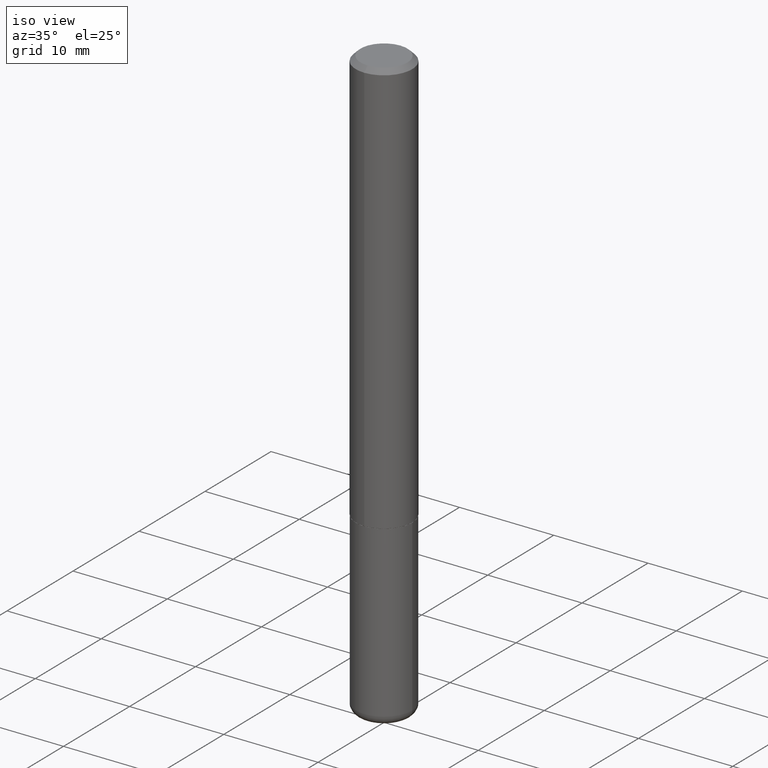
[diagram: clean part render]
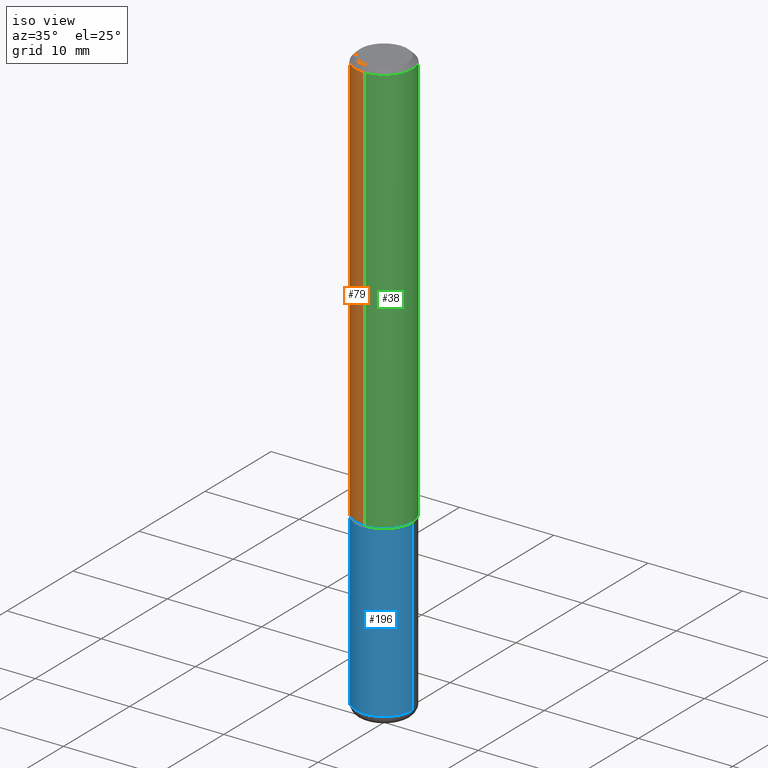
[diagram: same view with three faces highlighted in distinct colors, each labeled with its STEP entity id]
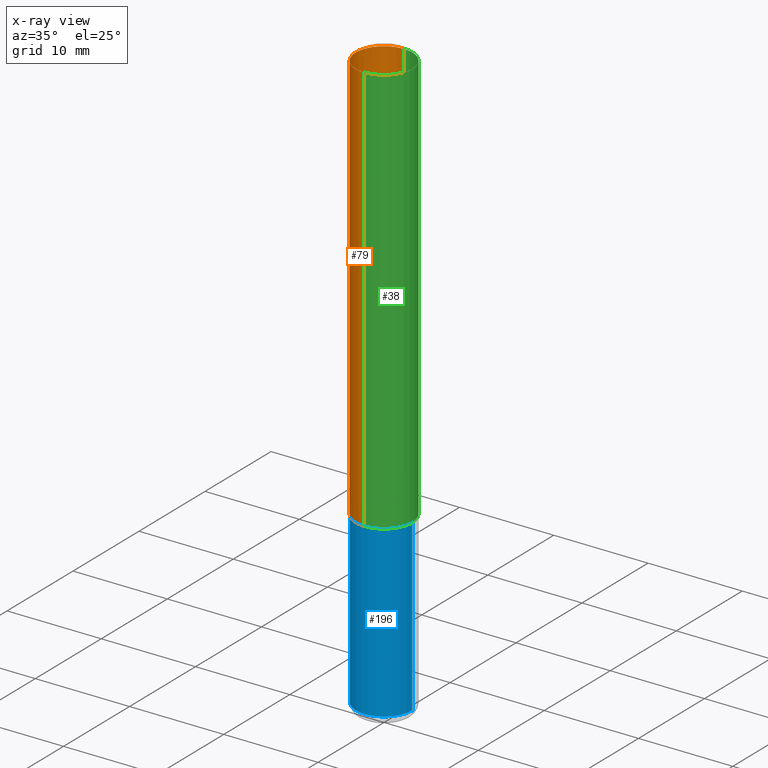
[diagram: x-ray of the same camera — body ghosted, the three highlighted faces saturated]
A machine part, iso view with three faces highlighted in distinct colors.
The next image is the same camera in x-ray (body ghosted, the three faces saturated) — at least one of them is partly hidden behind the body in this view.
Their STEP definitions:

[orange] entity #79 — the highlighted cylindrical surface (edge-blend (fillet) strip) has radius 2.9997 mm, axis along (-0, 0, 1).
#10 = ORIENTED_EDGE ( 'NONE', *, *, #206, .F. ) ;
#23 = CIRCLE ( 'NONE', #256, 0.1181000000000000105 ) ;
#25 = LINE ( 'NONE', #155, #282 ) ;
#41 = DIRECTION ( 'NONE',  ( -2.446293987951364918E-29, 3.490299631587476868E-15, 1.000000000000000000 ) ) ;
#55 = DIRECTION ( 'NONE',  ( -2.446293987951365198E-29, 3.490299631587476868E-15, 1.000000000000000000 ) ) ;
#65 = VECTOR ( 'NONE', #41, 39.37007874015748143 ) ;
#79 = ADVANCED_FACE ( 'NONE', ( #389 ), #102, .T. ) ;
#83 = CARTESIAN_POINT ( 'NONE',  ( 8.391509709327007782E-16, 0.1180999999999941402, -1.731300000000000727 ) ) ;
#102 = CYLINDRICAL_SURFACE ( 'NONE', #384, 0.1181000000000001077 ) ;
#117 = DIRECTION ( 'NONE',  ( -2.446293987951365198E-29, 3.490299631587476868E-15, 1.000000000000000000 ) ) ;
#134 = DIRECTION ( 'NONE',  ( -2.446293987951365198E-29, 3.490299631587476868E-15, 1.000000000000000000 ) ) ;
#153 = CARTESIAN_POINT ( 'NONE',  ( 4.892587975902738699E-31, -6.980599263174964533E-17, -0.02000000000000003511 ) ) ;
#154 = EDGE_LOOP ( 'NONE', ( #10, #188, #358, #192 ) ) ;
#155 = CARTESIAN_POINT ( 'NONE',  ( -8.246878922347486570E-16, -0.1181000000000001077, 4.122043864904813594E-16 ) ) ;
#156 = VERTEX_POINT ( 'NONE', #308 ) ;
#171 = CARTESIAN_POINT ( 'NONE',  ( 8.391509709326788873E-16, 0.1181000000000001077, -4.122043864904813594E-16 ) ) ;
#183 = DIRECTION ( 'NONE',  ( -6.982962677686265922E-15, -1.000000000000000000, 4.626330217890362236E-15 ) ) ;
#188 = ORIENTED_EDGE ( 'NONE', *, *, #307, .T. ) ;
#189 = AXIS2_PLACEMENT_3D ( 'NONE', #380, #117, #183 ) ;
#192 = ORIENTED_EDGE ( 'NONE', *, *, #344, .F. ) ;
#194 = DIRECTION ( 'NONE',  ( -2.446293987951364918E-29, 3.490299631587476868E-15, 1.000000000000000000 ) ) ;
#206 = EDGE_CURVE ( 'NONE', #354, #418, #346, .T. ) ;
#215 = CARTESIAN_POINT ( 'NONE',  ( -8.246878922347069460E-16, -0.1181000000000062278, -1.731299999999999617 ) ) ;
#240 = CARTESIAN_POINT ( 'NONE',  ( 0.000000000000000000, 0.000000000000000000, 0.000000000000000000 ) ) ;
#256 = AXIS2_PLACEMENT_3D ( 'NONE', #153, #55, #324 ) ;
#257 = VERTEX_POINT ( 'NONE', #215 ) ;
#275 = DIRECTION ( 'NONE',  ( -6.982962677686265133E-15, -1.000000000000000000, 3.490299631587476473E-15 ) ) ;
#282 = VECTOR ( 'NONE', #194, 39.37007874015748143 ) ;
#286 = CARTESIAN_POINT ( 'NONE',  ( 8.246878922347485584E-16, 0.1180999999999999411, -0.02000000000000044797 ) ) ;
#307 = EDGE_CURVE ( 'NONE', #354, #257, #352, .T. ) ;
#308 = CARTESIAN_POINT ( 'NONE',  ( -8.102248135368174406E-16, -0.1181000000000000799, -0.01999999999999961878 ) ) ;
#324 = DIRECTION ( 'NONE',  ( -6.982962677686265922E-15, -1.000000000000000000, 3.505890868245045303E-15 ) ) ;
#326 = EDGE_CURVE ( 'NONE', #257, #156, #25, .T. ) ;
#344 = EDGE_CURVE ( 'NONE', #418, #156, #23, .T. ) ;
#346 = LINE ( 'NONE', #171, #65 ) ;
#352 = CIRCLE ( 'NONE', #189, 0.1181000000000001909 ) ;
#354 = VERTEX_POINT ( 'NONE', #83 ) ;
#358 = ORIENTED_EDGE ( 'NONE', *, *, #326, .T. ) ;
#380 = CARTESIAN_POINT ( 'NONE',  ( 4.235268781340199606E-29, -6.042755752167398865E-15, -1.731300000000000283 ) ) ;
#384 = AXIS2_PLACEMENT_3D ( 'NONE', #240, #134, #275 ) ;
#389 = FACE_OUTER_BOUND ( 'NONE', #154, .T. ) ;
#418 = VERTEX_POINT ( 'NONE', #286 ) ;

[blue] entity #196 — the highlighted cylindrical surface (edge-blend (fillet) strip) has radius 2.9997 mm, axis along (-0, 0, 1).
#2 = CIRCLE ( 'NONE', #261, 0.1180999999999999966 ) ;
#12 = CIRCLE ( 'NONE', #263, 0.1181000000000000105 ) ;
#16 = DIRECTION ( 'NONE',  ( 1.000000000000000000, -6.982962677686266711E-15, 4.876176775795936353E-29 ) ) ;
#26 = ORIENTED_EDGE ( 'NONE', *, *, #386, .F. ) ;
#35 = VECTOR ( 'NONE', #146, 39.37007874015748143 ) ;
#46 = DIRECTION ( 'NONE',  ( -2.445468806185136597E-29, 3.491481338843145583E-15, 1.000000000000000000 ) ) ;
#70 = ORIENTED_EDGE ( 'NONE', *, *, #397, .T. ) ;
#77 = CARTESIAN_POINT ( 'NONE',  ( 4.236285612954512953E-29, -6.048293123277982656E-15, -1.732300000000000173 ) ) ;
#81 = CARTESIAN_POINT ( 'NONE',  ( 0.1180999999999999966, -8.246878922347480654E-16, 5.758764772215000440E-30 ) ) ;
#86 = LINE ( 'NONE', #226, #235 ) ;
#89 = DIRECTION ( 'NONE',  ( -2.445468806185136877E-29, 3.491481338843145188E-15, 1.000000000000000000 ) ) ;
#110 = CARTESIAN_POINT ( 'NONE',  ( -0.1180999999999999966, -6.446173990697430008E-15, -1.732300000000000173 ) ) ;
#112 = CARTESIAN_POINT ( 'NONE',  ( 0.000000000000000000, 0.000000000000000000, 0.000000000000000000 ) ) ;
#113 = DIRECTION ( 'NONE',  ( 1.000000000000000000, -6.982962677686272233E-15, 0.000000000000000000 ) ) ;
#115 = CARTESIAN_POINT ( 'NONE',  ( 5.969144809017300159E-29, -8.522356799982234543E-15, -2.440900000000000070 ) ) ;
#131 = ORIENTED_EDGE ( 'NONE', *, *, #318, .T. ) ;
#146 = DIRECTION ( 'NONE',  ( -2.445468806185136877E-29, 3.491481338843145188E-15, 1.000000000000000000 ) ) ;
#158 = EDGE_CURVE ( 'NONE', #225, #160, #2, .T. ) ;
#160 = VERTEX_POINT ( 'NONE', #279 ) ;
#163 = ORIENTED_EDGE ( 'NONE', *, *, #158, .F. ) ;
#181 = CYLINDRICAL_SURFACE ( 'NONE', #247, 0.1180999999999999966 ) ;
#191 = DIRECTION ( 'NONE',  ( -2.445468806185136597E-29, 3.491481338843145583E-15, 1.000000000000000000 ) ) ;
#196 = ADVANCED_FACE ( 'NONE', ( #283 ), #181, .T. ) ;
#201 = VERTEX_POINT ( 'NONE', #218 ) ;
#218 = CARTESIAN_POINT ( 'NONE',  ( -0.1180999999999998995, -7.683205829049557135E-15, -2.440900000000000070 ) ) ;
#225 = VERTEX_POINT ( 'NONE', #110 ) ;
#226 = CARTESIAN_POINT ( 'NONE',  ( -0.1180999999999999966, 8.391509709326782957E-16, -5.809262341591043784E-30 ) ) ;
#229 = LINE ( 'NONE', #81, #35 ) ;
#235 = VECTOR ( 'NONE', #89, 39.37007874015748143 ) ;
#247 = AXIS2_PLACEMENT_3D ( 'NONE', #112, #393, #16 ) ;
#261 = AXIS2_PLACEMENT_3D ( 'NONE', #77, #46, #284 ) ;
#263 = AXIS2_PLACEMENT_3D ( 'NONE', #115, #191, #113 ) ;
#265 = VERTEX_POINT ( 'NONE', #342 ) ;
#279 = CARTESIAN_POINT ( 'NONE',  ( 0.1180999999999999966, -6.872981015512730130E-15, -1.732300000000000173 ) ) ;
#283 = FACE_OUTER_BOUND ( 'NONE', #323, .T. ) ;
#284 = DIRECTION ( 'NONE',  ( 1.000000000000000000, -6.982962677686265133E-15, 0.000000000000000000 ) ) ;
#318 = EDGE_CURVE ( 'NONE', #201, #265, #12, .T. ) ;
#323 = EDGE_LOOP ( 'NONE', ( #26, #131, #70, #163 ) ) ;
#342 = CARTESIAN_POINT ( 'NONE',  ( 0.1180999999999998995, -9.347044692216981228E-15, -2.440900000000000070 ) ) ;
#386 = EDGE_CURVE ( 'NONE', #201, #225, #86, .T. ) ;
#393 = DIRECTION ( 'NONE',  ( -2.445468806185136597E-29, 3.491481338843145583E-15, 1.000000000000000000 ) ) ;
#397 = EDGE_CURVE ( 'NONE', #265, #160, #229, .T. ) ;

[green] entity #38 — the highlighted cylindrical surface (edge-blend (fillet) strip) has radius 2.9997 mm, axis along (-0, 0, 1).
#25 = LINE ( 'NONE', #155, #282 ) ;
#38 = ADVANCED_FACE ( 'NONE', ( #300 ), #271, .T. ) ;
#41 = DIRECTION ( 'NONE',  ( -2.446293987951364918E-29, 3.490299631587476868E-15, 1.000000000000000000 ) ) ;
#64 = ORIENTED_EDGE ( 'NONE', *, *, #168, .F. ) ;
#65 = VECTOR ( 'NONE', #41, 39.37007874015748143 ) ;
#82 = ORIENTED_EDGE ( 'NONE', *, *, #206, .T. ) ;
#83 = CARTESIAN_POINT ( 'NONE',  ( 8.391509709327007782E-16, 0.1180999999999941402, -1.731300000000000727 ) ) ;
#119 = EDGE_LOOP ( 'NONE', ( #296, #82, #64, #149 ) ) ;
#140 = CARTESIAN_POINT ( 'NONE',  ( 4.235268781340199606E-29, -6.042755752167398865E-15, -1.731300000000000283 ) ) ;
#148 = AXIS2_PLACEMENT_3D ( 'NONE', #272, #303, #268 ) ;
#149 = ORIENTED_EDGE ( 'NONE', *, *, #326, .F. ) ;
#155 = CARTESIAN_POINT ( 'NONE',  ( -8.246878922347486570E-16, -0.1181000000000001077, 4.122043864904813594E-16 ) ) ;
#156 = VERTEX_POINT ( 'NONE', #308 ) ;
#168 = EDGE_CURVE ( 'NONE', #156, #418, #210, .T. ) ;
#171 = CARTESIAN_POINT ( 'NONE',  ( 8.391509709326788873E-16, 0.1181000000000001077, -4.122043864904813594E-16 ) ) ;
#194 = DIRECTION ( 'NONE',  ( -2.446293987951364918E-29, 3.490299631587476868E-15, 1.000000000000000000 ) ) ;
#198 = AXIS2_PLACEMENT_3D ( 'NONE', #140, #396, #278 ) ;
#206 = EDGE_CURVE ( 'NONE', #354, #418, #346, .T. ) ;
#210 = CIRCLE ( 'NONE', #305, 0.1181000000000000105 ) ;
#215 = CARTESIAN_POINT ( 'NONE',  ( -8.246878922347069460E-16, -0.1181000000000062278, -1.731299999999999617 ) ) ;
#228 = EDGE_CURVE ( 'NONE', #257, #354, #276, .T. ) ;
#257 = VERTEX_POINT ( 'NONE', #215 ) ;
#268 = DIRECTION ( 'NONE',  ( -6.982962677686265133E-15, -1.000000000000000000, 3.490299631587476473E-15 ) ) ;
#271 = CYLINDRICAL_SURFACE ( 'NONE', #148, 0.1181000000000001077 ) ;
#272 = CARTESIAN_POINT ( 'NONE',  ( 0.000000000000000000, 0.000000000000000000, 0.000000000000000000 ) ) ;
#276 = CIRCLE ( 'NONE', #198, 0.1181000000000001909 ) ;
#278 = DIRECTION ( 'NONE',  ( -6.982962677686265922E-15, -1.000000000000000000, 4.626330217890362236E-15 ) ) ;
#282 = VECTOR ( 'NONE', #194, 39.37007874015748143 ) ;
#286 = CARTESIAN_POINT ( 'NONE',  ( 8.246878922347485584E-16, 0.1180999999999999411, -0.02000000000000044797 ) ) ;
#296 = ORIENTED_EDGE ( 'NONE', *, *, #228, .T. ) ;
#300 = FACE_OUTER_BOUND ( 'NONE', #119, .T. ) ;
#303 = DIRECTION ( 'NONE',  ( -2.446293987951365198E-29, 3.490299631587476868E-15, 1.000000000000000000 ) ) ;
#305 = AXIS2_PLACEMENT_3D ( 'NONE', #309, #314, #395 ) ;
#308 = CARTESIAN_POINT ( 'NONE',  ( -8.102248135368174406E-16, -0.1181000000000000799, -0.01999999999999961878 ) ) ;
#309 = CARTESIAN_POINT ( 'NONE',  ( 4.892587975902738699E-31, -6.980599263174964533E-17, -0.02000000000000003511 ) ) ;
#314 = DIRECTION ( 'NONE',  ( -2.446293987951365198E-29, 3.490299631587476868E-15, 1.000000000000000000 ) ) ;
#326 = EDGE_CURVE ( 'NONE', #257, #156, #25, .T. ) ;
#346 = LINE ( 'NONE', #171, #65 ) ;
#354 = VERTEX_POINT ( 'NONE', #83 ) ;
#395 = DIRECTION ( 'NONE',  ( -6.982962677686265922E-15, -1.000000000000000000, 3.505890868245045303E-15 ) ) ;
#396 = DIRECTION ( 'NONE',  ( -2.446293987951365198E-29, 3.490299631587476868E-15, 1.000000000000000000 ) ) ;
#418 = VERTEX_POINT ( 'NONE', #286 ) ;